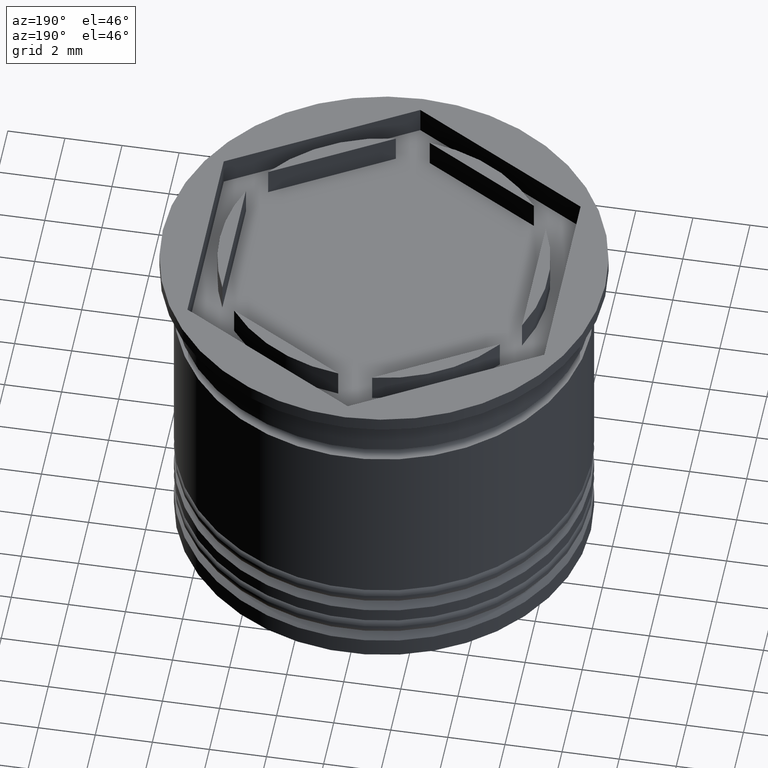
[diagram: clean part render]
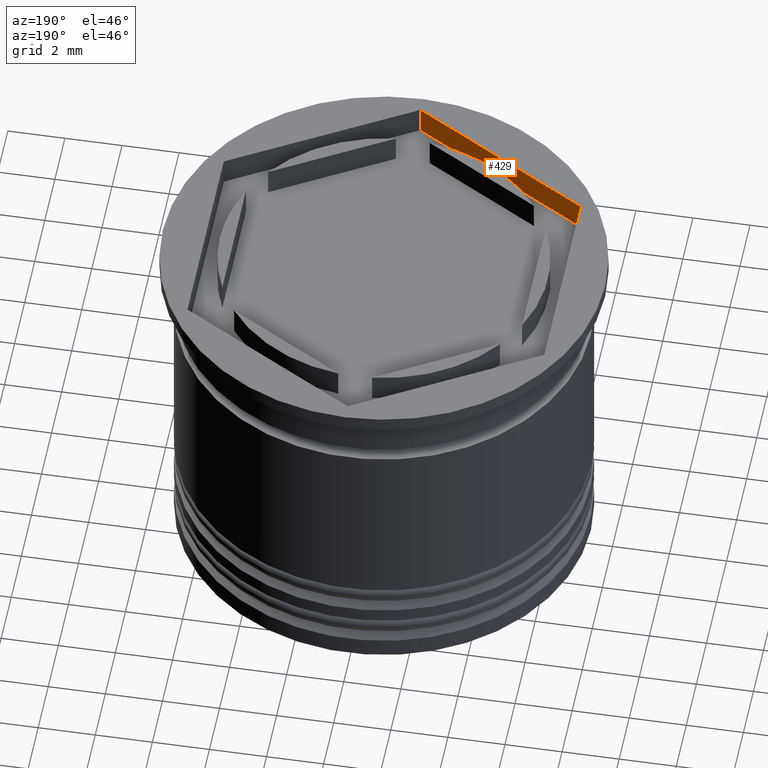
[diagram: same view with one face highlighted and labeled with its STEP entity id]
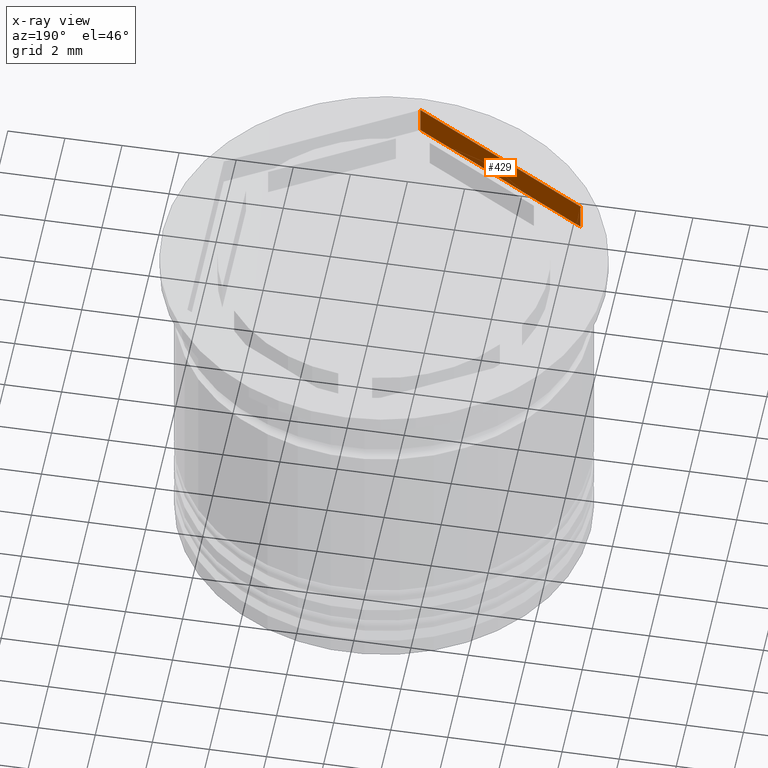
[diagram: x-ray of the same camera — body ghosted, the highlighted face saturated]
A machine part, auxiliary view. The second image highlights one B-rep face of the part: STEP entity #429.
The next image is the same camera in x-ray: the body ghosted, the highlighted face saturated — about 0% of this face is hidden behind the body in this view.
In plain terms, the highlighted planar face has unit normal (-0.5, -0.866, 0).
Its self-contained STEP definition (entity closure, byte-faithful):
#10 = EDGE_CURVE ( 'NONE', #394, #1556, #744, .T. ) ;
#12 = ORIENTED_EDGE ( 'NONE', *, *, #1977, .T. ) ;
#100 = CARTESIAN_POINT ( 'NONE',  ( -3.124999999999998668, -5.412658773652743172, -1.000000000000000000 ) ) ;
#126 = CARTESIAN_POINT ( 'NONE',  ( -6.250000000000000000, -3.608439182435161374, -1.000000000000000000 ) ) ;
#236 = VECTOR ( 'NONE', #1919, 1000.000000000000114 ) ;
#260 = FACE_OUTER_BOUND ( 'NONE', #1738, .T. ) ;
#270 = DIRECTION ( 'NONE',  ( 0.8660254037844387076, -0.4999999999999997224, 0.000000000000000000 ) ) ;
#284 = LINE ( 'NONE', #892, #236 ) ;
#394 = VERTEX_POINT ( 'NONE', #1790 ) ;
#397 = VERTEX_POINT ( 'NONE', #1451 ) ;
#429 = ADVANCED_FACE ( 'NONE', ( #260 ), #872, .F. ) ;
#438 = CARTESIAN_POINT ( 'NONE',  ( 8.673617379884035472E-16, -7.216878364870322748, -1.000000000000000000 ) ) ;
#549 = ORIENTED_EDGE ( 'NONE', *, *, #10, .F. ) ;
#656 = VERTEX_POINT ( 'NONE', #1891 ) ;
#692 = CARTESIAN_POINT ( 'NONE',  ( -3.124999999999998668, -5.412658773652743172, -1.000000000000000000 ) ) ;
#723 = AXIS2_PLACEMENT_3D ( 'NONE', #100, #1029, #270 ) ;
#744 = LINE ( 'NONE', #438, #1336 ) ;
#872 = PLANE ( 'NONE',  #723 ) ;
#892 = CARTESIAN_POINT ( 'NONE',  ( -3.124999999999998668, -5.412658773652743172, 0.000000000000000000 ) ) ;
#897 = ORIENTED_EDGE ( 'NONE', *, *, #1354, .T. ) ;
#1029 = DIRECTION ( 'NONE',  ( -0.4999999999999997780, -0.8660254037844388186, 0.000000000000000000 ) ) ;
#1031 = DIRECTION ( 'NONE',  ( 0.8660254037844387076, -0.4999999999999997224, 0.000000000000000000 ) ) ;
#1040 = LINE ( 'NONE', #126, #1837 ) ;
#1102 = CARTESIAN_POINT ( 'NONE',  ( 8.673617379884035472E-16, -7.216878364870322748, 0.000000000000000000 ) ) ;
#1287 = EDGE_CURVE ( 'NONE', #397, #394, #1759, .T. ) ;
#1331 = DIRECTION ( 'NONE',  ( -0.000000000000000000, -0.000000000000000000, 1.000000000000000000 ) ) ;
#1336 = VECTOR ( 'NONE', #1633, 1000.000000000000000 ) ;
#1354 = EDGE_CURVE ( 'NONE', #397, #656, #1040, .T. ) ;
#1451 = CARTESIAN_POINT ( 'NONE',  ( -6.250000000000000000, -3.608439182435161374, -1.000000000000000000 ) ) ;
#1556 = VERTEX_POINT ( 'NONE', #1102 ) ;
#1633 = DIRECTION ( 'NONE',  ( -0.000000000000000000, -0.000000000000000000, 1.000000000000000000 ) ) ;
#1703 = VECTOR ( 'NONE', #1031, 1000.000000000000114 ) ;
#1738 = EDGE_LOOP ( 'NONE', ( #12, #549, #1879, #897 ) ) ;
#1759 = LINE ( 'NONE', #692, #1703 ) ;
#1790 = CARTESIAN_POINT ( 'NONE',  ( 8.673617379884035472E-16, -7.216878364870322748, -1.000000000000000000 ) ) ;
#1837 = VECTOR ( 'NONE', #1331, 1000.000000000000000 ) ;
#1879 = ORIENTED_EDGE ( 'NONE', *, *, #1287, .F. ) ;
#1891 = CARTESIAN_POINT ( 'NONE',  ( -6.250000000000000000, -3.608439182435161374, 0.000000000000000000 ) ) ;
#1919 = DIRECTION ( 'NONE',  ( 0.8660254037844387076, -0.4999999999999997224, 0.000000000000000000 ) ) ;
#1977 = EDGE_CURVE ( 'NONE', #656, #1556, #284, .T. ) ;